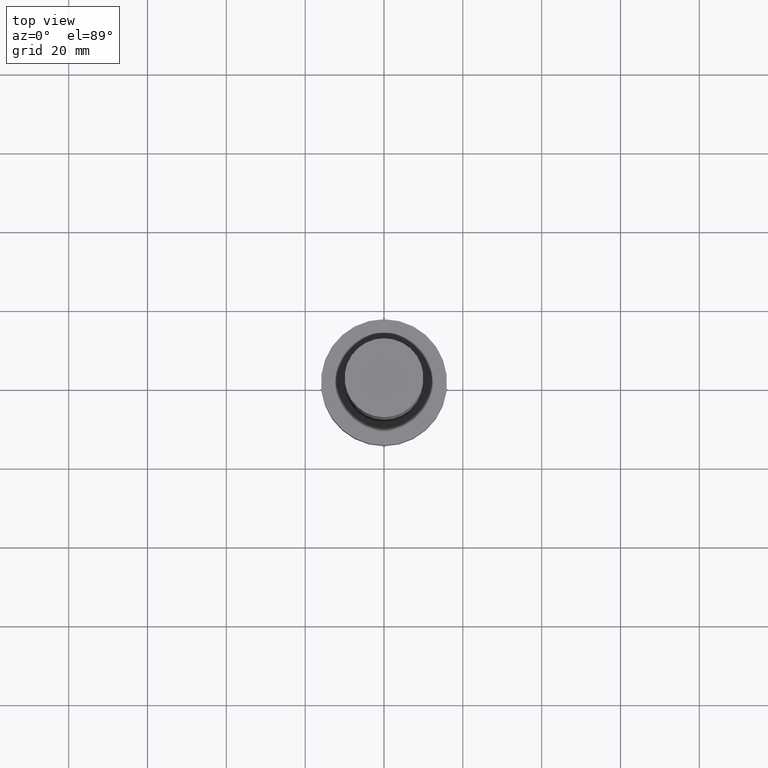
[diagram: clean part render]
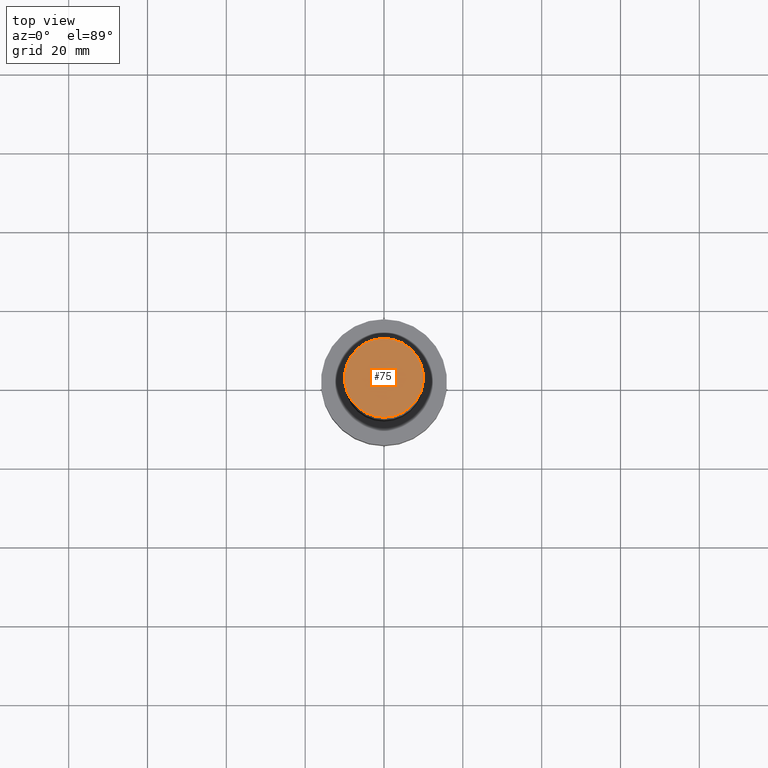
[diagram: same view with one face highlighted and labeled with its STEP entity id]
A machine part, top view. The second image highlights one B-rep face of the part: STEP entity #75.
In plain terms, the highlighted planar face has unit normal (-0, -0, 1).
Its self-contained STEP definition (entity closure, byte-faithful):
#75=ADVANCED_FACE('',(#85),#86,.T.);
#85=FACE_OUTER_BOUND('',#110,.T.);
#86=PLANE('',#111);
#110=EDGE_LOOP('',(#135));
#111=AXIS2_PLACEMENT_3D('',#136,#137,#138);
#135=ORIENTED_EDGE('',*,*,#178,.F.);
#136=CARTESIAN_POINT('',(-1.10218211923263E-014,5.00000000021493,180.000000000002));
#137=DIRECTION('',(-6.12323399573677E-017,-3.88727260841398E-014,1.0));
#138=DIRECTION('',(2.38509513138445E-030,-1.0,-3.88727260841398E-014));
#178=EDGE_CURVE('',#186,#186,#187,.T.);
#186=VERTEX_POINT('',#202);
#187=CIRCLE('',#203,10.0000000004298);
#202=CARTESIAN_POINT('',(-1.10218211923263E-014,10.0000000004298,180.000000000002));
#203=AXIS2_PLACEMENT_3D('',#218,#219,#220);
#218=CARTESIAN_POINT('',(-1.10218211923263E-014,2.00882257472157E-014,180.000000000002));
#219=DIRECTION('',(6.12323399573677E-017,-1.11601254151197E-016,-1.0));
#220=DIRECTION('',(2.00645320308564E-033,1.0,-1.11601254151197E-016));